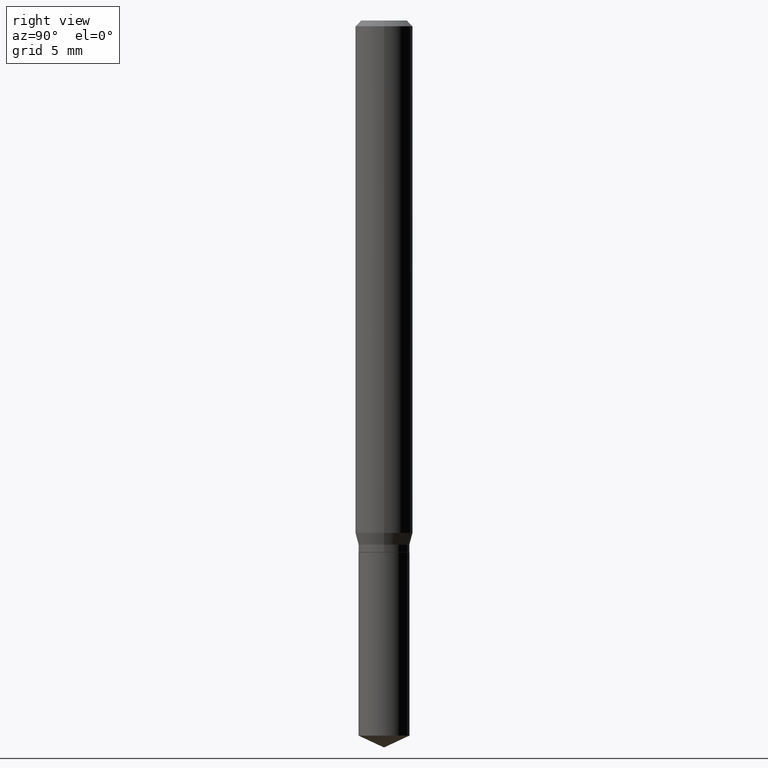
[diagram: clean part render]
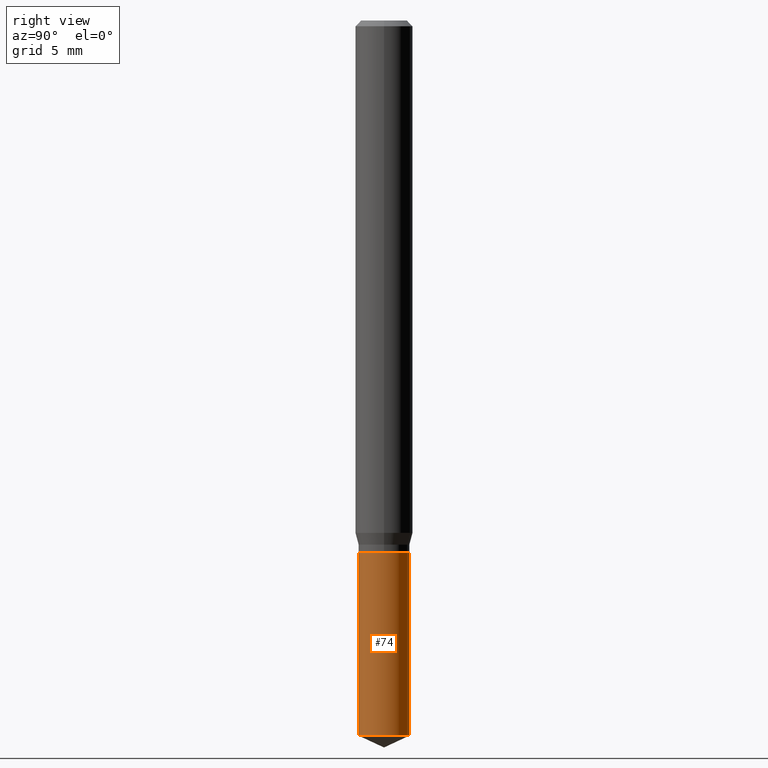
[diagram: same view with one face highlighted and labeled with its STEP entity id]
A machine part, right view. The second image highlights one B-rep face of the part: STEP entity #74.
In plain terms, the highlighted cylindrical surface (edge-blend (fillet) strip) has radius 1.3348 mm, axis along (-0, 0, 1).
Its self-contained STEP definition (entity closure, byte-faithful):
#3 = EDGE_CURVE ( 'NONE', #90, #280, #180, .T. ) ;
#19 = DIRECTION ( 'NONE',  ( -2.445458899330790108E-29, 3.491495526022433599E-15, 1.000000000000000000 ) ) ;
#21 = VERTEX_POINT ( 'NONE', #217 ) ;
#22 = CARTESIAN_POINT ( 'NONE',  ( -3.669546887123774197E-16, -0.05255000000000515509, -1.471595532563954478 ) ) ;
#27 = ORIENTED_EDGE ( 'NONE', *, *, #3, .F. ) ;
#29 = CARTESIAN_POINT ( 'NONE',  ( 2.676565608369631794E-29, -3.821426325363822773E-15, -1.094499999999999806 ) ) ;
#42 = FACE_OUTER_BOUND ( 'NONE', #92, .T. ) ;
#48 = AXIS2_PLACEMENT_3D ( 'NONE', #449, #216, #410 ) ;
#74 = ADVANCED_FACE ( 'NONE', ( #42 ), #75, .T. ) ;
#75 = CYLINDRICAL_SURFACE ( 'NONE', #438, 0.05254999999999999949 ) ;
#90 = VERTEX_POINT ( 'NONE', #456 ) ;
#92 = EDGE_LOOP ( 'NONE', ( #182, #213, #27, #474 ) ) ;
#129 = LINE ( 'NONE', #170, #388 ) ;
#136 = CIRCLE ( 'NONE', #48, 0.05254999999999999949 ) ;
#165 = DIRECTION ( 'NONE',  ( -2.445458899330790108E-29, 3.491495526022433205E-15, 1.000000000000000000 ) ) ;
#170 = CARTESIAN_POINT ( 'NONE',  ( -3.669546887123864916E-16, -0.05255000000000382282, -1.094499999999999806 ) ) ;
#178 = DIRECTION ( 'NONE',  ( -2.445458899330790108E-29, 3.491495526022433599E-15, 1.000000000000000000 ) ) ;
#180 = CIRCLE ( 'NONE', #379, 0.05254999999999999949 ) ;
#182 = ORIENTED_EDGE ( 'NONE', *, *, #390, .T. ) ;
#193 = DIRECTION ( 'NONE',  ( -6.982962677686265922E-15, -1.000000000000000000, 2.599284484932695853E-15 ) ) ;
#207 = EDGE_CURVE ( 'NONE', #21, #280, #354, .T. ) ;
#213 = ORIENTED_EDGE ( 'NONE', *, *, #207, .T. ) ;
#216 = DIRECTION ( 'NONE',  ( -2.445458899330790108E-29, 3.491495526022433205E-15, 1.000000000000000000 ) ) ;
#217 = CARTESIAN_POINT ( 'NONE',  ( 3.733902076419686358E-16, 0.05254999999999486471, -1.471595532563955144 ) ) ;
#239 = CARTESIAN_POINT ( 'NONE',  ( 3.733902076419593174E-16, 0.05254999999999616922, -1.094500000000000028 ) ) ;
#240 = EDGE_CURVE ( 'NONE', #311, #90, #129, .T. ) ;
#264 = DIRECTION ( 'NONE',  ( -6.982962677686265922E-15, -1.000000000000000000, 2.599284484932695853E-15 ) ) ;
#279 = CARTESIAN_POINT ( 'NONE',  ( 3.733902076419685865E-16, 0.05254999999999616922, -1.094500000000000028 ) ) ;
#280 = VERTEX_POINT ( 'NONE', #279 ) ;
#293 = DIRECTION ( 'NONE',  ( -2.445458899330790108E-29, 3.491495526022433205E-15, 1.000000000000000000 ) ) ;
#311 = VERTEX_POINT ( 'NONE', #22 ) ;
#339 = VECTOR ( 'NONE', #178, 39.37007874015748143 ) ;
#354 = LINE ( 'NONE', #239, #339 ) ;
#379 = AXIS2_PLACEMENT_3D ( 'NONE', #29, #293, #264 ) ;
#388 = VECTOR ( 'NONE', #19, 39.37007874015748143 ) ;
#390 = EDGE_CURVE ( 'NONE', #311, #21, #136, .T. ) ;
#410 = DIRECTION ( 'NONE',  ( -6.982962677686265922E-15, -1.000000000000000000, 5.198568969865391706E-15 ) ) ;
#423 = CARTESIAN_POINT ( 'NONE',  ( 2.676565608369631794E-29, -3.821426325363822773E-15, -1.094499999999999806 ) ) ;
#438 = AXIS2_PLACEMENT_3D ( 'NONE', #423, #165, #193 ) ;
#449 = CARTESIAN_POINT ( 'NONE',  ( 3.598737234376038977E-29, -5.138053690193917852E-15, -1.471595532563954700 ) ) ;
#456 = CARTESIAN_POINT ( 'NONE',  ( -3.669546887123864916E-16, -0.05255000000000382282, -1.094499999999999806 ) ) ;
#474 = ORIENTED_EDGE ( 'NONE', *, *, #240, .F. ) ;